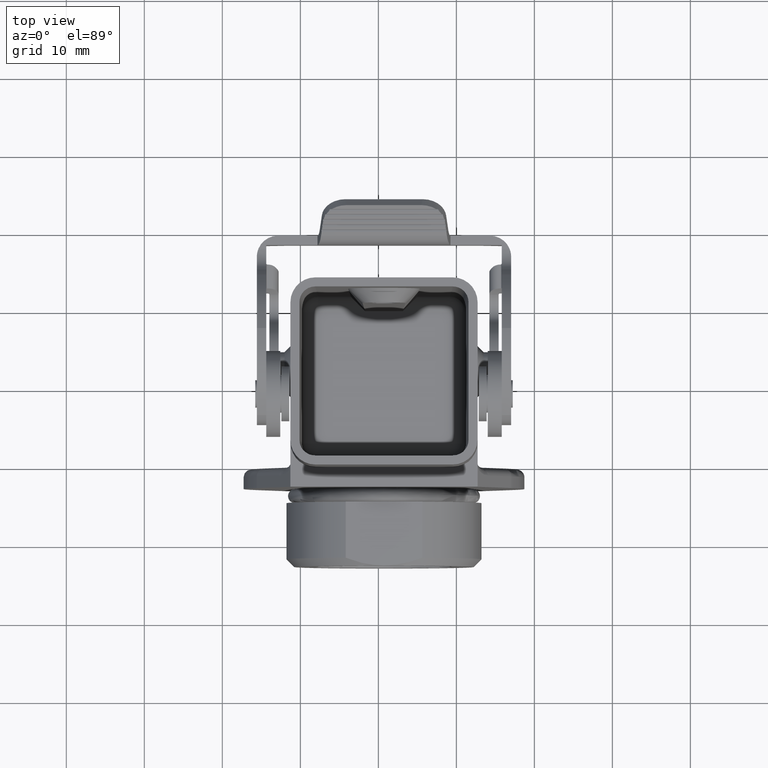
[diagram: clean part render]
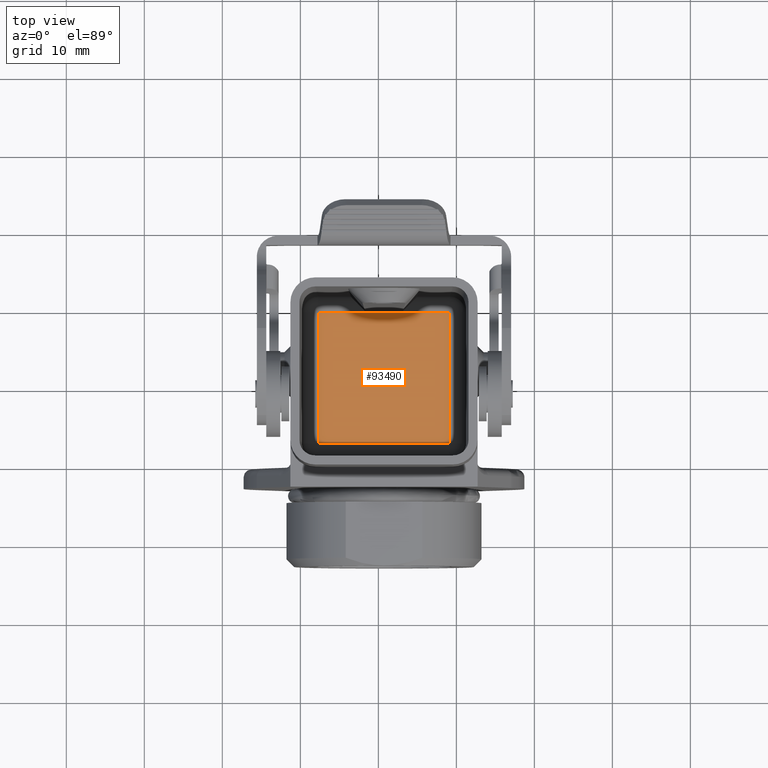
[diagram: same view with one face highlighted and labeled with its STEP entity id]
A machine part, top view. The second image highlights one B-rep face of the part: STEP entity #93490.
In plain terms, the highlighted planar face has unit normal (0, 0, 1).
Its self-contained STEP definition (entity closure, byte-faithful):
#93100=CARTESIAN_POINT('',(41.8957883177234,50.4830216822766,-25.));
#93110=DIRECTION('',(0.,0.,1.));
#93120=DIRECTION('',(1.,0.,-0.));
#93130=AXIS2_PLACEMENT_3D('',#93100,#93110,#93120);
#93140=PLANE('',#93130);
#93150=CARTESIAN_POINT('',(42.3161522073556,33.2482282073556,-25.));
#93160=DIRECTION('',(0.,1.,0.));
#93170=VECTOR('',#93160,1.);
#93180=LINE('',#93150,#93170);
#93190=CARTESIAN_POINT('',(42.3161522073556,33.2482282073556,-25.));
#93200=VERTEX_POINT('',#93190);
#93210=CARTESIAN_POINT('',(42.3161522073556,50.0626577926444,-25.));
#93220=VERTEX_POINT('',#93210);
#93230=EDGE_CURVE('',#93200,#93220,#93180,.T.);
#93240=ORIENTED_EDGE('',*,*,#93230,.F.);
#93250=CARTESIAN_POINT('',(42.3161522073556,50.0626577926444,-25.));
#93260=DIRECTION('',(1.,0.,0.));
#93270=VECTOR('',#93260,1.);
#93280=LINE('',#93250,#93270);
#93290=CARTESIAN_POINT('',(59.1305817926444,50.0626577926445,-25.));
#93300=VERTEX_POINT('',#93290);
#93310=EDGE_CURVE('',#93220,#93300,#93280,.T.);
#93320=ORIENTED_EDGE('',*,*,#93310,.F.);
#93330=CARTESIAN_POINT('',(59.1305817926444,50.0626577926444,-25.));
#93340=DIRECTION('',(0.,-1.,0.));
#93350=VECTOR('',#93340,1.);
#93360=LINE('',#93330,#93350);
#93370=CARTESIAN_POINT('',(59.1305817926444,33.2482282073556,-25.));
#93380=VERTEX_POINT('',#93370);
#93390=EDGE_CURVE('',#93300,#93380,#93360,.T.);
#93400=ORIENTED_EDGE('',*,*,#93390,.F.);
#93410=CARTESIAN_POINT('',(59.1305817926444,33.2482282073556,-25.));
#93420=DIRECTION('',(-1.,0.,0.));
#93430=VECTOR('',#93420,1.);
#93440=LINE('',#93410,#93430);
#93450=EDGE_CURVE('',#93380,#93200,#93440,.T.);
#93460=ORIENTED_EDGE('',*,*,#93450,.F.);
#93470=EDGE_LOOP('',(#93460,#93400,#93320,#93240));
#93480=FACE_OUTER_BOUND('',#93470,.T.);
#93490=ADVANCED_FACE('',(#93480),#93140,.T.);